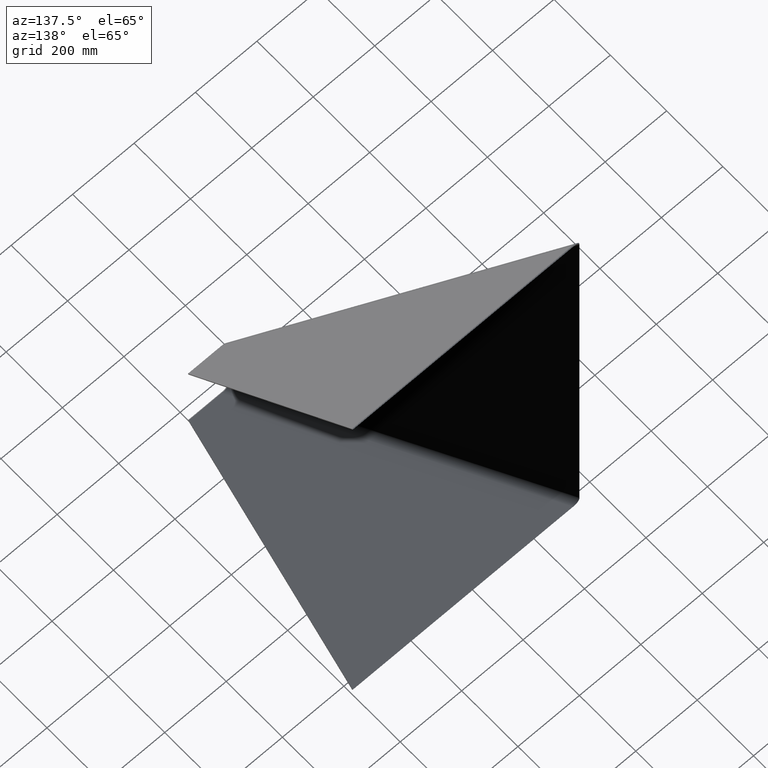
[diagram: clean part render]
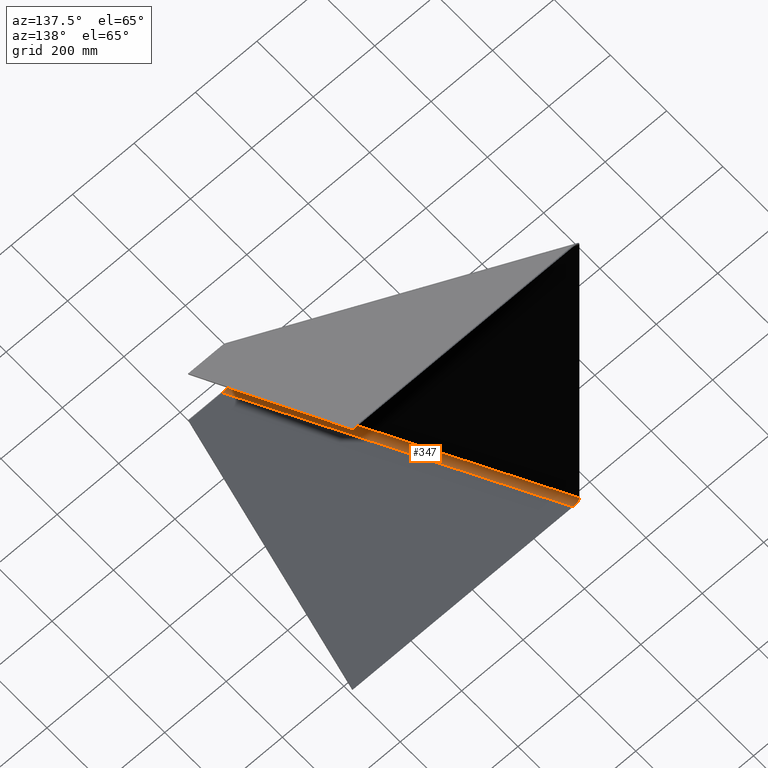
[diagram: same view with one face highlighted and labeled with its STEP entity id]
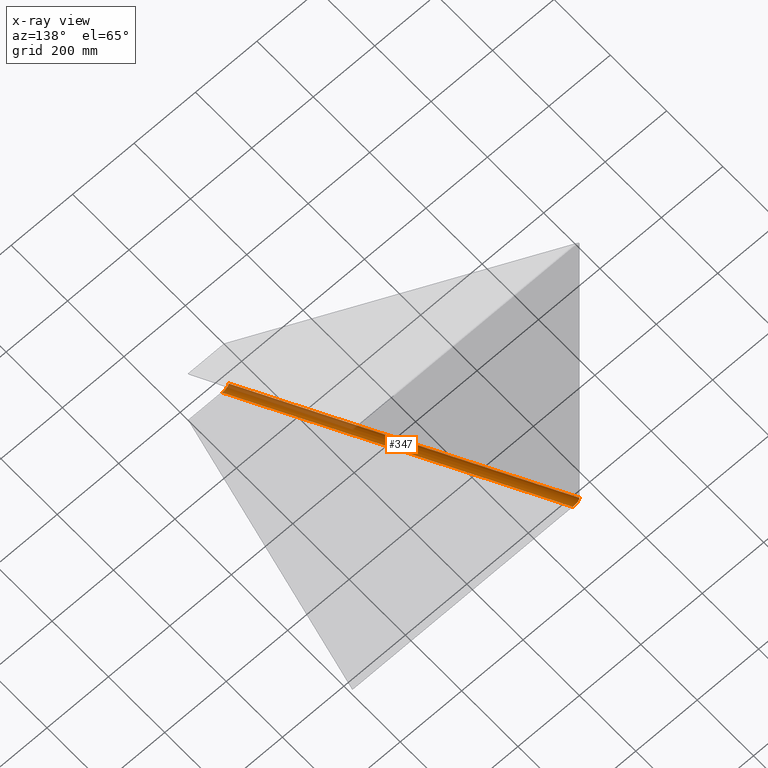
[diagram: x-ray of the same camera — body ghosted, the highlighted face saturated]
A machine part, auxiliary view. The second image highlights one B-rep face of the part: STEP entity #347.
The next image is the same camera in x-ray: the body ghosted, the highlighted face saturated — about 17% of this face is hidden behind the body in this view.
In plain terms, the highlighted face is a freeform B-spline surface patch.
Its self-contained STEP definition (entity closure, byte-faithful):
#12 = CARTESIAN_POINT ( 'NONE',  ( -127.5420898764364210, 48.46593349913584348, -119.8205280107419952 ) ) ;
#24 = EDGE_CURVE ( 'NONE', #176, #299, #622, .T. ) ;
#30 = CARTESIAN_POINT ( 'NONE',  ( -719.8924450933141088, 631.3057189887816776, -738.0700310044805974 ) ) ;
#39 = CARTESIAN_POINT ( 'NONE',  ( -532.8754232097695649, 437.1326001658025007, -525.1538613440753807 ) ) ;
#42 = B_SPLINE_CURVE_WITH_KNOTS ( 'NONE', 3,
 ( #487, #673, #604, #793, #213, #498, #12, #661, #85, #400 ),
 .UNSPECIFIED., .F., .F.,
 ( 4, 2, 2, 2, 4 ),
 ( 0.000000000000000000, 0.2500000000000000000, 0.5000000000000000000, 0.7500000000000000000, 1.000000000000000000 ),
 .UNSPECIFIED. ) ;
#44 = CARTESIAN_POINT ( 'NONE',  ( -326.7364582349750890, 242.8163832081365001, -326.7364582349752027 ) ) ;
#49 = CARTESIAN_POINT ( 'NONE',  ( -129.9236651701033622, 48.16537148641018007, -109.0000000000000142 ) ) ;
#62 = B_SPLINE_SURFACE_WITH_KNOTS ( 'NONE', 3, 3, ( 
 ( #677, #230, #489, #49 ),
 ( #414, #423, #631, #681 ),
 ( #484, #368, #302, #741 ),
 ( #626, #166, #365, #565 ),
 ( #170, #39, #92, #818 ),
 ( #97, #287, #237, #806 ),
 ( #298, #356, #44, #637 ),
 ( #410, #621, #418, #499 ),
 ( #293, #686, #811, #232 ),
 ( #755, #350, #494, #226 ),
 ( #555, #103, #613, #361 ),
 ( #549, #174, #561, #815 ),
 ( #427, #544, #690, #695 ) ),
 .UNSPECIFIED., .F., .F., .F.,
 ( 4, 3, 3, 3, 4 ),
 ( 4, 4 ),
 ( 2.465190328815661892E-30, 0.2500000000000000000, 0.5000000000000000000, 0.7500000000000000000, 1.000000000000000000 ),
 ( 0.000000000000000000, 1.000000000000000000 ),
 .UNSPECIFIED. ) ;
#75 = CARTESIAN_POINT ( 'NONE',  ( -737.9236651701032770, 631.1653714864100948, -717.0000000000001137 ) ) ;
#85 = CARTESIAN_POINT ( 'NONE',  ( -130.0700310044804837, 48.30571898878164916, -111.8924450933145920 ) ) ;
#90 = CARTESIAN_POINT ( 'NONE',  ( -727.8205280107417821, 631.4659334991358719, -735.5420898764363073 ) ) ;
#92 = CARTESIAN_POINT ( 'NONE',  ( -330.2087565431029930, 242.7992668324691294, -322.4871946774086382 ) ) ;
#97 = CARTESIAN_POINT ( 'NONE',  ( -734.0001700317604900, 631.4830498748032142, -730.1394131048563167 ) ) ;
#103 = CARTESIAN_POINT ( 'NONE',  ( -520.0300138302919777, 437.0432003767608649, -534.9114832273688762 ) ) ;
#127 = ORIENTED_EDGE ( 'NONE', *, *, #222, .F. ) ;
#132 = B_SPLINE_CURVE_WITH_KNOTS ( 'NONE', 3,
 ( #792, #394, #212, #467, #730, #540, #90, #794, #30, #799 ),
 .UNSPECIFIED., .F., .F.,
 ( 4, 2, 2, 2, 4 ),
 ( 0.000000000000000000, 0.2500000000000000000, 0.5000000000000000000, 0.7500000000000000000, 1.000000000000000000 ),
 .UNSPECIFIED. ) ;
#166 = CARTESIAN_POINT ( 'NONE',  ( -533.8934532185692206, 437.0879002712816828, -522.5919375871837929 ) ) ;
#170 = CARTESIAN_POINT ( 'NONE',  ( -735.5420898764360800, 631.4659334991358719, -727.8205280107420094 ) ) ;
#174 = CARTESIAN_POINT ( 'NONE',  ( -517.2258912161249782, 436.9723911282303561, -535.4033700452778248 ) ) ;
#176 = VERTEX_POINT ( 'NONE', #696 ) ;
#212 = CARTESIAN_POINT ( 'NONE',  ( -737.5781498940353913, 631.3765337100941224, -722.6966804969588338 ) ) ;
#213 = CARTESIAN_POINT ( 'NONE',  ( -122.1394131048563452, 48.48304987480319994, -126.0001700317607600 ) ) ;
#217 = CARTESIAN_POINT ( 'NONE',  ( -129.9236651701034191, 48.16537148641010191, -108.9999999999999574 ) ) ;
#222 = EDGE_CURVE ( 'NONE', #403, #299, #42, .T. ) ;
#224 = EDGE_CURVE ( 'NONE', #404, #403, #493, .T. ) ;
#226 = CARTESIAN_POINT ( 'NONE',  ( -117.2586042538503790, 48.42123360461498294, -128.5601198852360767 ) ) ;
#230 = CARTESIAN_POINT ( 'NONE',  ( -535.2569985034366482, 436.8320381530768373, -514.3333333333332575 ) ) ;
#232 = CARTESIAN_POINT ( 'NONE',  ( -119.8205280107419526, 48.46593349913584348, -127.5420898764364779 ) ) ;
#237 = CARTESIAN_POINT ( 'NONE',  ( -328.6668366984273462, 242.8163832081365001, -324.8060797715230592 ) ) ;
#243 = CARTESIAN_POINT ( 'NONE',  ( -129.9236651701034191, 48.16537148641010191, -108.9999999999999574 ) ) ;
#281 = EDGE_CURVE ( 'NONE', #176, #404, #132, .T. ) ;
#287 = CARTESIAN_POINT ( 'NONE',  ( -531.3335033650939749, 437.1497165414698998, -527.4727464381896880 ) ) ;
#293 = CARTESIAN_POINT ( 'NONE',  ( -727.8205280107416684, 631.4659334991358719, -735.5420898764363073 ) ) ;
#298 = CARTESIAN_POINT ( 'NONE',  ( -732.0697915683083465, 631.4830498748032142, -732.0697915683085739 ) ) ;
#299 = VERTEX_POINT ( 'NONE', #217 ) ;
#302 = CARTESIAN_POINT ( 'NONE',  ( -332.2448165607022474, 242.7098670434274368, -317.3633471636255194 ) ) ;
#328 = ORIENTED_EDGE ( 'NONE', *, *, #24, .T. ) ;
#331 = CARTESIAN_POINT ( 'NONE',  ( -332.5903318367699626, 242.4987048197434660, -311.6666666666666288 ) ) ;
#344 = CARTESIAN_POINT ( 'NONE',  ( -514.3333333333331439, 436.8320381530768373, -535.2569985034367619 ) ) ;
#347 = ADVANCED_FACE ( 'NONE', ( #746 ), #62, .F. ) ;
#350 = CARTESIAN_POINT ( 'NONE',  ( -522.5919375871835655, 437.0879002712816828, -533.8934532185693342 ) ) ;
#356 = CARTESIAN_POINT ( 'NONE',  ( -529.4031249016417178, 437.1497165414698998, -529.4031249016418315 ) ) ;
#361 = CARTESIAN_POINT ( 'NONE',  ( -114.6966804969587912, 48.37653371009412240, -129.5781498940356755 ) ) ;
#365 = CARTESIAN_POINT ( 'NONE',  ( -331.2267865519026486, 242.7545669379482831, -319.9252709205171072 ) ) ;
#368 = CARTESIAN_POINT ( 'NONE',  ( -534.9114832273687625, 437.0432003767608649, -520.0300138302922051 ) ) ;
#394 = CARTESIAN_POINT ( 'NONE',  ( -738.0700310044803700, 631.3057189887816776, -719.8924450933143362 ) ) ;
#400 = CARTESIAN_POINT ( 'NONE',  ( -129.9236651701034191, 48.16537148641010191, -108.9999999999999574 ) ) ;
#403 = VERTEX_POINT ( 'NONE', #582 ) ;
#404 = VERTEX_POINT ( 'NONE', #514 ) ;
#410 = CARTESIAN_POINT ( 'NONE',  ( -730.1394131048560894, 631.4830498748032142, -734.0001700317607174 ) ) ;
#414 = CARTESIAN_POINT ( 'NONE',  ( -738.0700367119442262, 631.3057244615636137, -719.8925578827917207 ) ) ;
#418 = CARTESIAN_POINT ( 'NONE',  ( -324.8060797715229455, 242.8163832081365001, -328.6668366984274030 ) ) ;
#423 = CARTESIAN_POINT ( 'NONE',  ( -535.4033700452777111, 436.9723911282303561, -517.2258912161250919 ) ) ;
#427 = CARTESIAN_POINT ( 'NONE',  ( -716.9999999999997726, 631.1653714864102085, -737.9236651701033907 ) ) ;
#429 = EDGE_LOOP ( 'NONE', ( #653, #328, #127, #640 ) ) ;
#461 = CARTESIAN_POINT ( 'NONE',  ( -717.0000000000000000, 631.1653714864104359, -737.9236651701035044 ) ) ;
#467 = CARTESIAN_POINT ( 'NONE',  ( -735.5420898764360800, 631.4659334991358719, -727.8205280107418957 ) ) ;
#484 = CARTESIAN_POINT ( 'NONE',  ( -737.5781498940353913, 631.3765337100941224, -722.6966804969589475 ) ) ;
#487 = CARTESIAN_POINT ( 'NONE',  ( -109.0000000000000426, 48.16537148641020138, -129.9236651701034475 ) ) ;
#489 = CARTESIAN_POINT ( 'NONE',  ( -332.5903318367699626, 242.4987048197434660, -311.6666666666666288 ) ) ;
#493 = B_SPLINE_CURVE_WITH_KNOTS ( 'NONE', 3,
 ( #461, #344, #605, #781 ),
 .UNSPECIFIED., .F., .F.,
 ( 4, 4 ),
 ( 0.000000000000000000, 1.000000000000000000 ),
 .UNSPECIFIED. ) ;
#494 = CARTESIAN_POINT ( 'NONE',  ( -319.9252709205169367, 242.7545669379482831, -331.2267865519027055 ) ) ;
#498 = CARTESIAN_POINT ( 'NONE',  ( -126.0001700317607600, 48.48304987480319994, -122.1394131048563594 ) ) ;
#499 = CARTESIAN_POINT ( 'NONE',  ( -122.1394131048563452, 48.48304987480319994, -126.0001700317607600 ) ) ;
#514 = CARTESIAN_POINT ( 'NONE',  ( -717.0000000000000000, 631.1653714864104359, -737.9236651701035044 ) ) ;
#540 = CARTESIAN_POINT ( 'NONE',  ( -730.1394131048562031, 631.4830498748032142, -734.0001700317607174 ) ) ;
#544 = CARTESIAN_POINT ( 'NONE',  ( -514.3333333333331439, 436.8320381530768373, -535.2569985034367619 ) ) ;
#549 = CARTESIAN_POINT ( 'NONE',  ( -719.8925578827914933, 631.3057244615636137, -738.0700367119444536 ) ) ;
#555 = CARTESIAN_POINT ( 'NONE',  ( -722.6966804969586065, 631.3765337100941224, -737.5781498940356187 ) ) ;
#561 = CARTESIAN_POINT ( 'NONE',  ( -314.5592245494582926, 242.6390577948969565, -332.7367033786110824 ) ) ;
#565 = CARTESIAN_POINT ( 'NONE',  ( -128.5601198852360483, 48.42123360461498294, -117.2586042538504074 ) ) ;
#582 = CARTESIAN_POINT ( 'NONE',  ( -109.0000000000000426, 48.16537148641020138, -129.9236651701034475 ) ) ;
#604 = CARTESIAN_POINT ( 'NONE',  ( -114.6966804969588338, 48.37653371009412240, -129.5781498940357039 ) ) ;
#605 = CARTESIAN_POINT ( 'NONE',  ( -311.6666666666665151, 242.4987048197434660, -332.5903318367700763 ) ) ;
#613 = CARTESIAN_POINT ( 'NONE',  ( -317.3633471636253489, 242.7098670434274368, -332.2448165607023043 ) ) ;
#621 = CARTESIAN_POINT ( 'NONE',  ( -527.4727464381895743, 437.1497165414698998, -531.3335033650940886 ) ) ;
#622 = B_SPLINE_CURVE_WITH_KNOTS ( 'NONE', 3,
 ( #75, #643, #331, #243 ),
 .UNSPECIFIED., .F., .F.,
 ( 4, 4 ),
 ( 0.000000000000000000, 1.000000000000000000 ),
 .UNSPECIFIED. ) ;
#626 = CARTESIAN_POINT ( 'NONE',  ( -736.5601198852357356, 631.4212336046149403, -725.2586042538504216 ) ) ;
#631 = CARTESIAN_POINT ( 'NONE',  ( -332.7367033786109687, 242.6390577948969565, -314.5592245494583494 ) ) ;
#637 = CARTESIAN_POINT ( 'NONE',  ( -124.0697915683085455, 48.48304987480319994, -124.0697915683085455 ) ) ;
#640 = ORIENTED_EDGE ( 'NONE', *, *, #224, .F. ) ;
#643 = CARTESIAN_POINT ( 'NONE',  ( -535.2569985034366482, 436.8320381530768373, -514.3333333333332575 ) ) ;
#653 = ORIENTED_EDGE ( 'NONE', *, *, #281, .F. ) ;
#661 = CARTESIAN_POINT ( 'NONE',  ( -129.5781498940356187, 48.37653371009412240, -114.6966804969588338 ) ) ;
#673 = CARTESIAN_POINT ( 'NONE',  ( -111.8924450933145636, 48.30571898878164916, -130.0700310044805121 ) ) ;
#677 = CARTESIAN_POINT ( 'NONE',  ( -737.9236651701031633, 631.1653714864102085, -717.0000000000000000 ) ) ;
#681 = CARTESIAN_POINT ( 'NONE',  ( -130.0700367119443683, 48.30572446156363497, -111.8925578827917349 ) ) ;
#686 = CARTESIAN_POINT ( 'NONE',  ( -525.1538613440751533, 437.1326001658025007, -532.8754232097696786 ) ) ;
#690 = CARTESIAN_POINT ( 'NONE',  ( -311.6666666666665151, 242.4987048197434660, -332.5903318367700763 ) ) ;
#695 = CARTESIAN_POINT ( 'NONE',  ( -108.9999999999999858, 48.16537148641018007, -129.9236651701033907 ) ) ;
#696 = CARTESIAN_POINT ( 'NONE',  ( -737.9236651701032770, 631.1653714864100948, -717.0000000000001137 ) ) ;
#730 = CARTESIAN_POINT ( 'NONE',  ( -734.0001700317606037, 631.4830498748032142, -730.1394131048563167 ) ) ;
#741 = CARTESIAN_POINT ( 'NONE',  ( -129.5781498940356755, 48.37653371009412240, -114.6966804969588196 ) ) ;
#746 = FACE_OUTER_BOUND ( 'NONE', #429, .T. ) ;
#755 = CARTESIAN_POINT ( 'NONE',  ( -725.2586042538500806, 631.4212336046149403, -736.5601198852359630 ) ) ;
#781 = CARTESIAN_POINT ( 'NONE',  ( -109.0000000000000426, 48.16537148641020138, -129.9236651701034475 ) ) ;
#792 = CARTESIAN_POINT ( 'NONE',  ( -737.9236651701032770, 631.1653714864100948, -717.0000000000001137 ) ) ;
#793 = CARTESIAN_POINT ( 'NONE',  ( -119.8205280107419668, 48.46593349913584348, -127.5420898764364495 ) ) ;
#794 = CARTESIAN_POINT ( 'NONE',  ( -722.6966804969587201, 631.3765337100941224, -737.5781498940356187 ) ) ;
#799 = CARTESIAN_POINT ( 'NONE',  ( -717.0000000000000000, 631.1653714864104359, -737.9236651701035044 ) ) ;
#806 = CARTESIAN_POINT ( 'NONE',  ( -126.0001700317607600, 48.48304987480319994, -122.1394131048563452 ) ) ;
#811 = CARTESIAN_POINT ( 'NONE',  ( -322.4871946774085245, 242.7992668324691579, -330.2087565431031067 ) ) ;
#815 = CARTESIAN_POINT ( 'NONE',  ( -111.8925578827917064, 48.30572446156363497, -130.0700367119443968 ) ) ;
#818 = CARTESIAN_POINT ( 'NONE',  ( -127.5420898764364210, 48.46593349913584348, -119.8205280107419810 ) ) ;